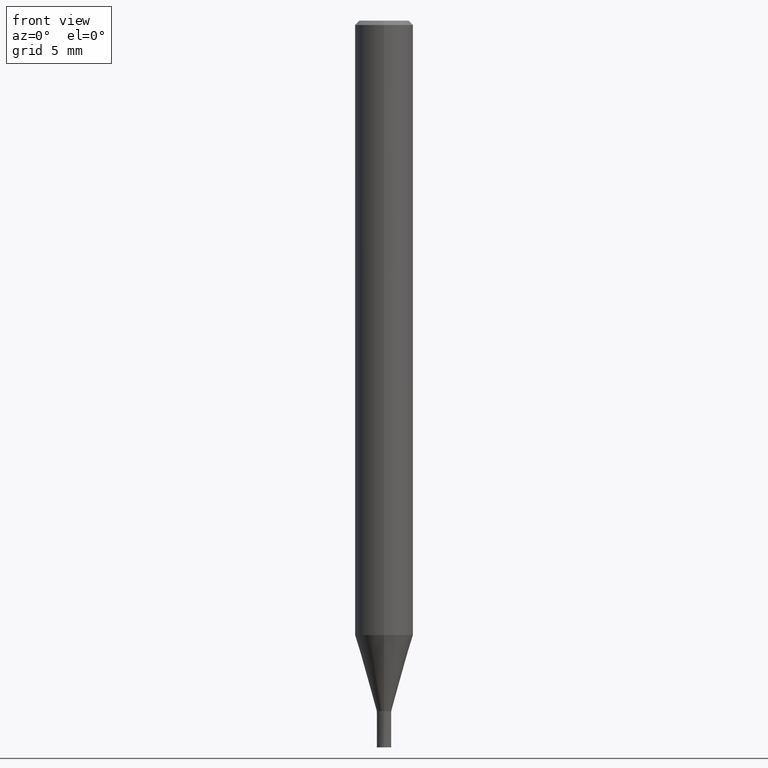
[diagram: clean part render]
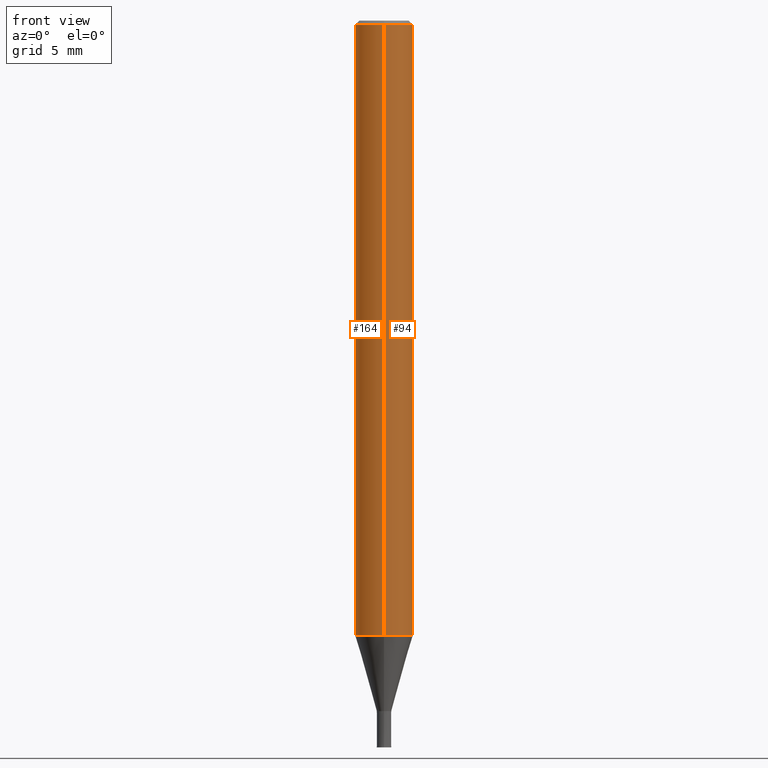
[diagram: same view with one multi-face feature highlighted, each face labeled with its STEP entity id]
A machine part, front view. The highlighted faces form ONE feature: a constant-radius fillet chain: 2 tangent blend faces with common blend radius 2 mm. The faces share edges in the B-rep.
Their STEP definitions:
[1] entity #164 (Cylinder):
#104=EDGE_CURVE('',#128,#178,#230,.T.);
#116=VERTEX_POINT('',#243);
#128=VERTEX_POINT('',#257);
#130=VERTEX_POINT('',#259);
#136=EDGE_CURVE('',#130,#178,#266,.T.);
#164=ADVANCED_FACE('',(#295),#296,.T.);
#168=EDGE_CURVE('',#130,#116,#300,.T.);
#170=EDGE_CURVE('',#116,#128,#302,.T.);
#178=VERTEX_POINT('',#313);
#230=LINE('',#359,#360);
#243=CARTESIAN_POINT('',(2.44921270764475E-016,-2.0,-0.299999999999997));
#257=CARTESIAN_POINT('',(0.0,2.0,-0.299999999999997));
#259=CARTESIAN_POINT('',(2.44921270764475E-016,-2.0,-42.269));
#266=CIRCLE('',#403,2.0);
#295=FACE_OUTER_BOUND('',#443,.T.);
#296=CYLINDRICAL_SURFACE('',#444,2.0);
#300=LINE('',#450,#451);
#302=CIRCLE('',#454,2.0);
#313=CARTESIAN_POINT('',(0.0,2.0,-42.269));
#359=CARTESIAN_POINT('',(-2.44921270764475E-016,2.0,-21.2845));
#360=VECTOR('',#514,1.0);
#403=AXIS2_PLACEMENT_3D('',#550,#551,#552);
#443=EDGE_LOOP('',(#584,#585,#586,#587));
#444=AXIS2_PLACEMENT_3D('',#588,#589,#590);
#450=CARTESIAN_POINT('',(2.44921270764475E-016,-2.0,-21.2845));
#451=VECTOR('',#594,1.0);
#454=AXIS2_PLACEMENT_3D('',#595,#596,#597);
#514=DIRECTION('',(0.0,0.0,-1.0));
#550=CARTESIAN_POINT('',(0.0,0.0,-42.269));
#551=DIRECTION('',(0.0,0.0,-1.0));
#552=DIRECTION('',(0.0,1.0,0.0));
#584=ORIENTED_EDGE('',*,*,#104,.T.);
#585=ORIENTED_EDGE('',*,*,#136,.F.);
#586=ORIENTED_EDGE('',*,*,#168,.T.);
#587=ORIENTED_EDGE('',*,*,#170,.T.);
#588=CARTESIAN_POINT('',(0.0,0.0,-21.2845));
#589=DIRECTION('',(-0.0,-0.0,1.0));
#590=DIRECTION('',(0.0,1.0,0.0));
#594=DIRECTION('',(-0.0,-0.0,1.0));
#595=CARTESIAN_POINT('',(0.0,0.0,-0.299999999999997));
#596=DIRECTION('',(0.0,0.0,-1.0));
#597=DIRECTION('',(0.0,1.0,0.0));
[2] entity #94 (Cylinder):
#94=ADVANCED_FACE('',(#217),#218,.T.);
#104=EDGE_CURVE('',#128,#178,#230,.T.);
#116=VERTEX_POINT('',#243);
#128=VERTEX_POINT('',#257);
#130=VERTEX_POINT('',#259);
#162=EDGE_CURVE('',#178,#130,#293,.T.);
#166=EDGE_CURVE('',#128,#116,#298,.T.);
#168=EDGE_CURVE('',#130,#116,#300,.T.);
#178=VERTEX_POINT('',#313);
#217=FACE_OUTER_BOUND('',#344,.T.);
#218=CYLINDRICAL_SURFACE('',#345,2.0);
#230=LINE('',#359,#360);
#243=CARTESIAN_POINT('',(2.44921270764475E-016,-2.0,-0.299999999999997));
#257=CARTESIAN_POINT('',(0.0,2.0,-0.299999999999997));
#259=CARTESIAN_POINT('',(2.44921270764475E-016,-2.0,-42.269));
#293=CIRCLE('',#441,2.0);
#298=CIRCLE('',#447,2.0);
#300=LINE('',#450,#451);
#313=CARTESIAN_POINT('',(0.0,2.0,-42.269));
#344=EDGE_LOOP('',(#491,#492,#493,#494));
#345=AXIS2_PLACEMENT_3D('',#495,#496,#497);
#359=CARTESIAN_POINT('',(-2.44921270764475E-016,2.0,-21.2845));
#360=VECTOR('',#514,1.0);
#441=AXIS2_PLACEMENT_3D('',#580,#581,#582);
#447=AXIS2_PLACEMENT_3D('',#591,#592,#593);
#450=CARTESIAN_POINT('',(2.44921270764475E-016,-2.0,-21.2845));
#451=VECTOR('',#594,1.0);
#491=ORIENTED_EDGE('',*,*,#104,.F.);
#492=ORIENTED_EDGE('',*,*,#166,.T.);
#493=ORIENTED_EDGE('',*,*,#168,.F.);
#494=ORIENTED_EDGE('',*,*,#162,.F.);
#495=CARTESIAN_POINT('',(0.0,0.0,-21.2845));
#496=DIRECTION('',(-0.0,-0.0,1.0));
#497=DIRECTION('',(0.0,1.0,0.0));
#514=DIRECTION('',(0.0,0.0,-1.0));
#580=CARTESIAN_POINT('',(0.0,0.0,-42.269));
#581=DIRECTION('',(0.0,0.0,-1.0));
#582=DIRECTION('',(0.0,1.0,0.0));
#591=CARTESIAN_POINT('',(0.0,0.0,-0.299999999999997));
#592=DIRECTION('',(0.0,0.0,-1.0));
#593=DIRECTION('',(0.0,1.0,0.0));
#594=DIRECTION('',(-0.0,-0.0,1.0));